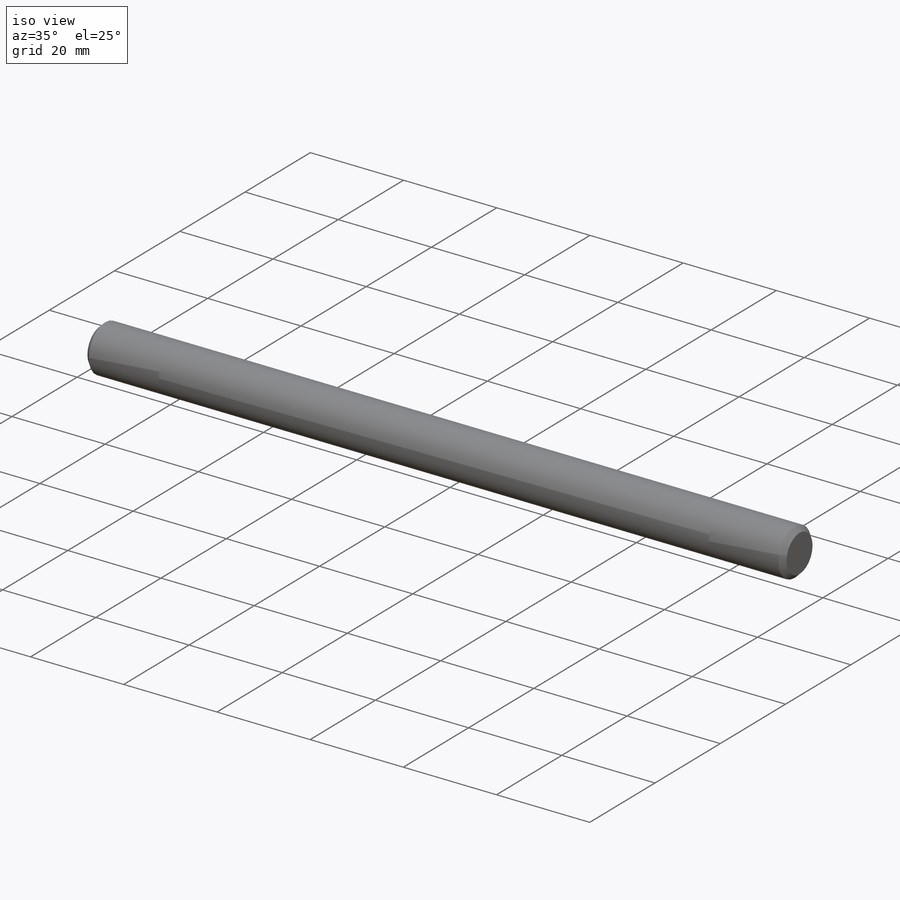
[diagram: iso view]
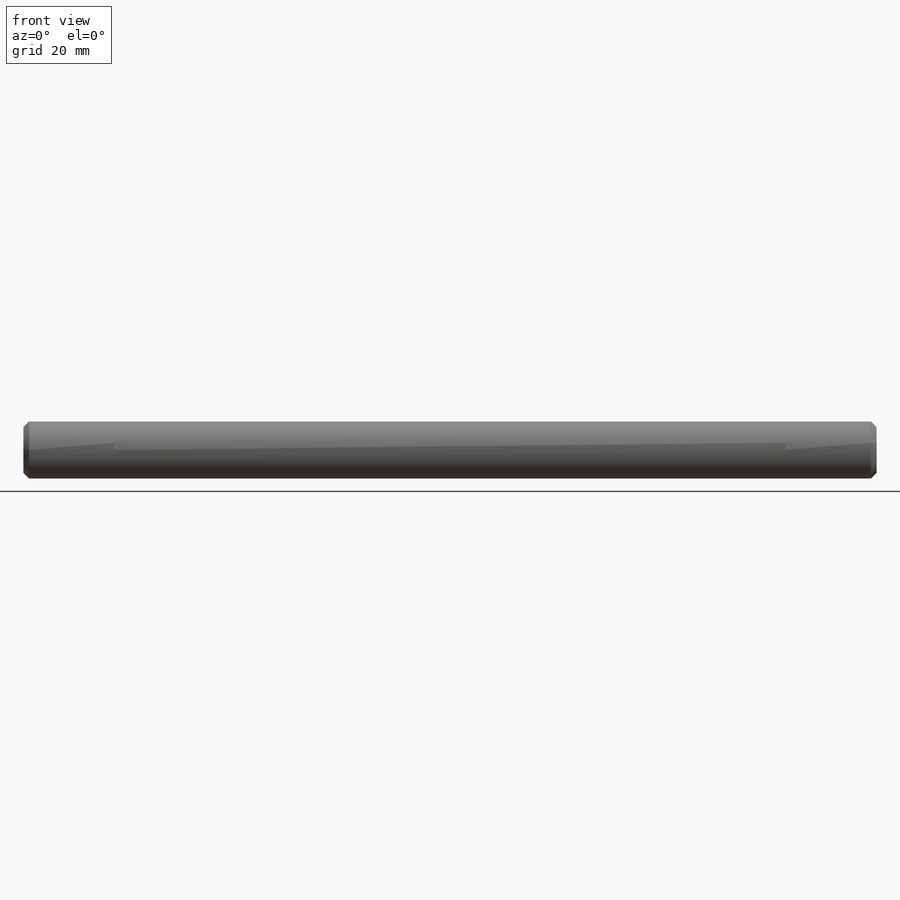
[diagram: front view]
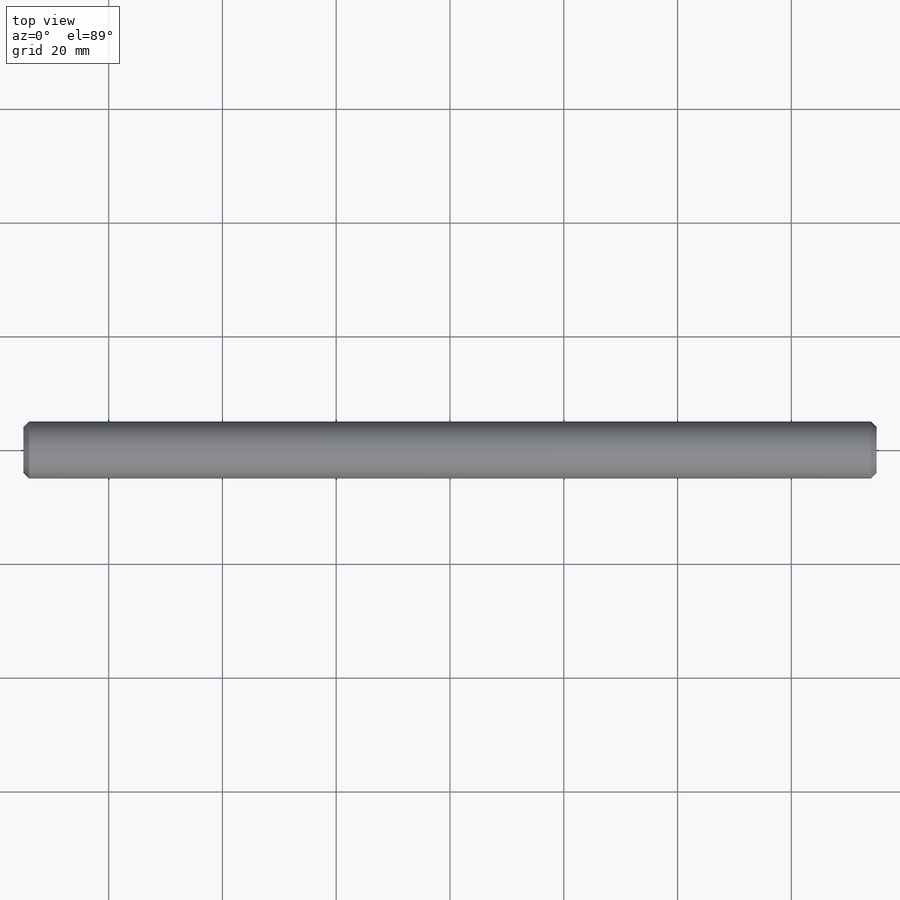
[diagram: top view]
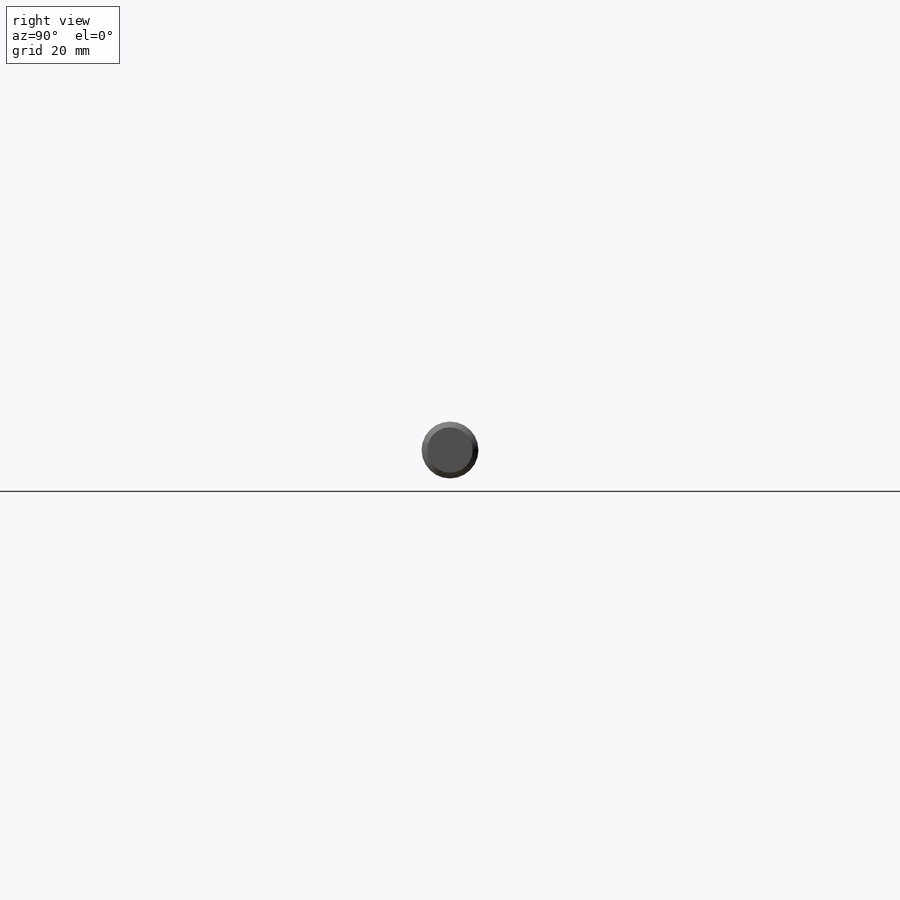
[diagram: right view]
SOLIDWORKS PART (.sldprt)
format: sldprt  version: not decoded by parser v0  size: 173,568 bytes
history: native  units: mm
features: plane x5, thread x2, material x1, sketch x1, extrude x1, chamfer x1 (+10 scaffold rows collapsed)
feature tree (21):
  scaffold x10  (default folders/planes/origin — collapsed)
  material  "Material <nicht festgelegt>"
  plane  "Ebene vorne"
  plane  "Ebene oben"
  plane  "Ebene rechts"
  sketch  "Skizze1"  dims[D1=10.0mm]
  extrude  "Aufsatz-Linear austragen1"  Depth=150mm
  plane  "Ebene1"  Offset=16mm
  plane  "Ebene2"  Offset=16mm
  thread  "Gewindedarstellung1"  Diameter=8.891mm  [1 undecoded]
  thread  "Gewindedarstellung2"  Diameter=8.891mm  [1 undecoded]
  chamfer  "Fase1"  Distance=1mm Angle=45deg
decode coverage: 5 of 5 modeling features carry decoded parameters
note: 2 parameter values undecoded
note: suppression state not decoded; provenance and decode notes live in map.json
